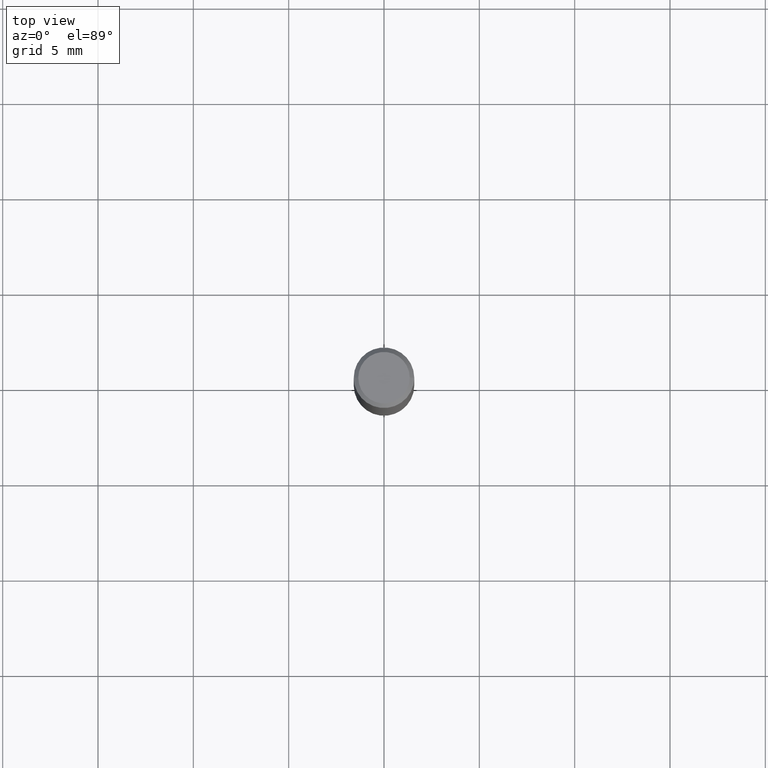
[diagram: clean part render]
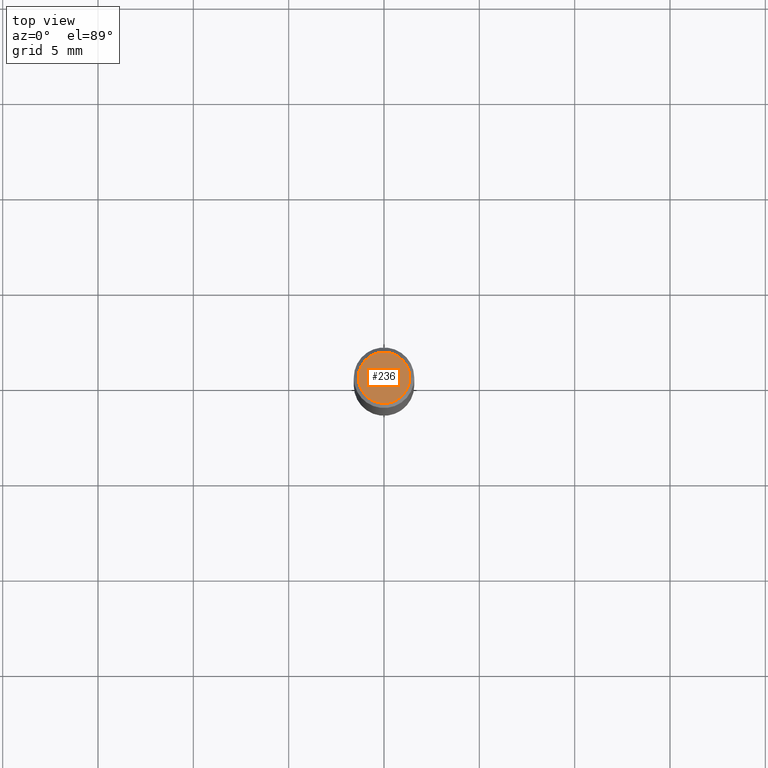
[diagram: same view with one face highlighted and labeled with its STEP entity id]
A machine part, top view. The second image highlights one B-rep face of the part: STEP entity #236.
In plain terms, the highlighted planar face has unit normal (0, -0, -1).
Its self-contained STEP definition (entity closure, byte-faithful):
#18 = DIRECTION ( 'NONE',  ( 1.000000000000000000, -6.982962677686266711E-15, 4.875930095424100059E-29 ) ) ;
#56 = DIRECTION ( 'NONE',  ( -2.445468806185136597E-29, 3.491481338843145583E-15, 1.000000000000000000 ) ) ;
#65 = CARTESIAN_POINT ( 'NONE',  ( 7.076796394983739835E-47, -1.010378970665454992E-32, -2.893840386385196200E-18 ) ) ;
#72 = AXIS2_PLACEMENT_3D ( 'NONE', #282, #56, #135 ) ;
#94 = CARTESIAN_POINT ( 'NONE',  ( -0.05312499999999999861, 3.873362110279099094E-16, -5.787680772773044021E-18 ) ) ;
#135 = DIRECTION ( 'NONE',  ( 1.000000000000000000, -6.982962677686266711E-15, 4.875930095424100059E-29 ) ) ;
#144 = EDGE_CURVE ( 'NONE', #376, #267, #200, .T. ) ;
#147 = DIRECTION ( 'NONE',  ( -1.000000000000000000, 6.982962677686265922E-15, -4.876176775795935793E-29 ) ) ;
#193 = ORIENTED_EDGE ( 'NONE', *, *, #144, .T. ) ;
#199 = CARTESIAN_POINT ( 'NONE',  ( 1.415359278996747967E-46, -2.020757941330909984E-32, -5.787680772770392401E-18 ) ) ;
#200 = CIRCLE ( 'NONE', #379, 0.05312499999999999861 ) ;
#236 = ADVANCED_FACE ( 'NONE', ( #564 ), #380, .F. ) ;
#255 = DIRECTION ( 'NONE',  ( -2.445468806185136597E-29, 3.491481338843145583E-15, 1.000000000000000000 ) ) ;
#267 = VERTEX_POINT ( 'NONE', #296 ) ;
#282 = CARTESIAN_POINT ( 'NONE',  ( 1.415359278996747967E-46, -2.020757941330909984E-32, -5.787680772770392401E-18 ) ) ;
#288 = ORIENTED_EDGE ( 'NONE', *, *, #378, .T. ) ;
#296 = CARTESIAN_POINT ( 'NONE',  ( 0.05312499999999999861, -4.129888592719939842E-16, -5.787680772767651417E-18 ) ) ;
#376 = VERTEX_POINT ( 'NONE', #94 ) ;
#377 = DIRECTION ( 'NONE',  ( 2.438088387897960049E-29, -3.491481338843145188E-15, -1.000000000000000000 ) ) ;
#378 = EDGE_CURVE ( 'NONE', #267, #376, #565, .T. ) ;
#379 = AXIS2_PLACEMENT_3D ( 'NONE', #199, #255, #18 ) ;
#380 = PLANE ( 'NONE',  #508 ) ;
#400 = EDGE_LOOP ( 'NONE', ( #193, #288 ) ) ;
#508 = AXIS2_PLACEMENT_3D ( 'NONE', #65, #377, #147 ) ;
#564 = FACE_OUTER_BOUND ( 'NONE', #400, .T. ) ;
#565 = CIRCLE ( 'NONE', #72, 0.05312499999999999861 ) ;